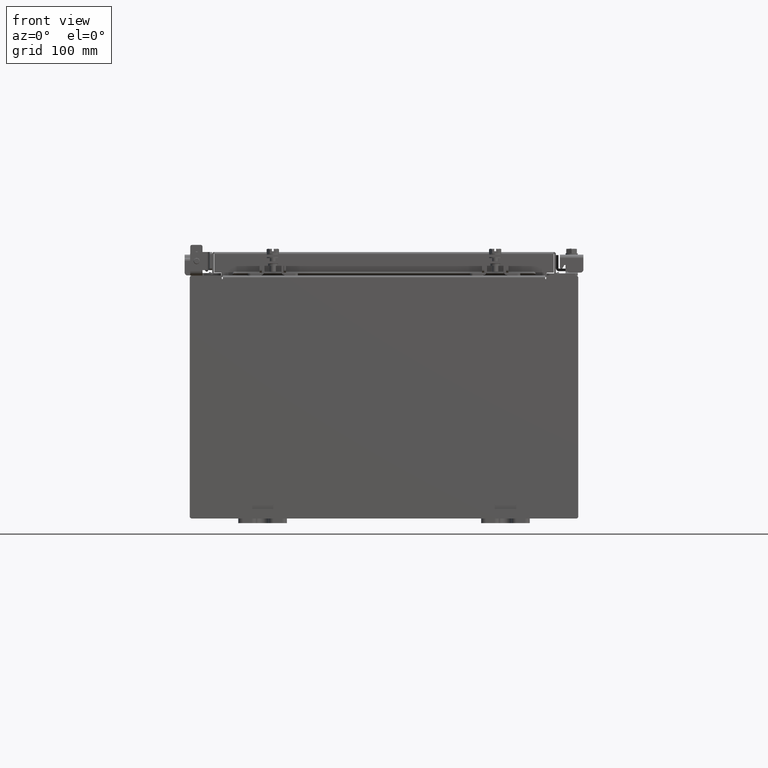
[diagram: clean part render]
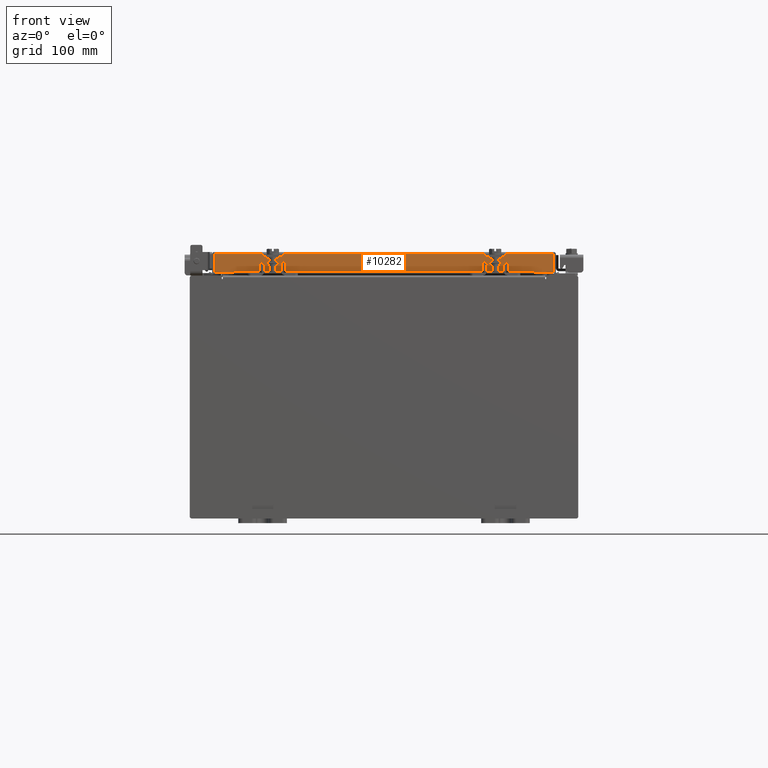
[diagram: same view with one face highlighted and labeled with its STEP entity id]
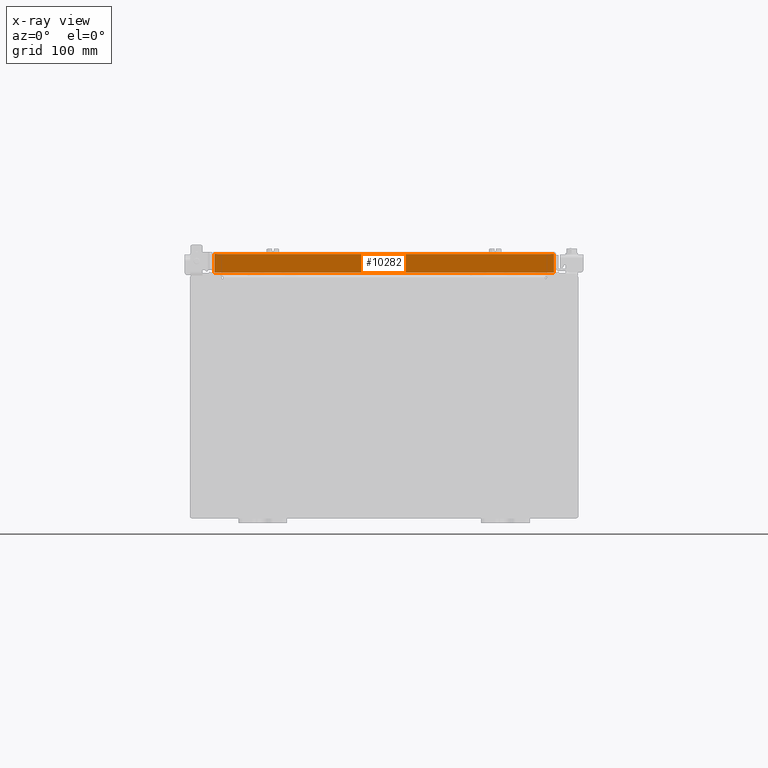
[diagram: x-ray of the same camera — body ghosted, the highlighted face saturated]
A machine part, front view. The second image highlights one B-rep face of the part: STEP entity #10282.
The next image is the same camera in x-ray: the body ghosted, the highlighted face saturated — about 0% of this face is hidden behind the body in this view.
In plain terms, the highlighted planar face has unit normal (-0, 1, -0).
Its self-contained STEP definition (entity closure, byte-faithful):
#180 = EDGE_CURVE ( 'NONE', #18688, #7448, #8850, .T. ) ;
#432 = DIRECTION ( 'NONE',  ( -1.000000000000000000, 0.0000000000000000000, 0.0000000000000000000 ) ) ;
#2750 = VECTOR ( 'NONE', #9981, 39.37007874015748100 ) ;
#3635 = PLANE ( 'NONE',  #17361 ) ;
#4314 = CARTESIAN_POINT ( 'NONE',  ( 7.077999999999995000, -9.094000000000004700, -0.8499999999999999800 ) ) ;
#4582 = VECTOR ( 'NONE', #432, 39.37007874015748100 ) ;
#4780 = VECTOR ( 'NONE', #19242, 39.37007874015748100 ) ;
#5139 = VERTEX_POINT ( 'NONE', #21142 ) ;
#5454 = DIRECTION ( 'NONE',  ( -3.535949605205718300E-031, 1.000000000000000000, -2.818880942772360100E-015 ) ) ;
#5787 = ORIENTED_EDGE ( 'NONE', *, *, #20840, .F. ) ;
#6684 = CARTESIAN_POINT ( 'NONE',  ( -6.989157864376270600, -9.094000000000004700, -0.8499999999999977600 ) ) ;
#7003 = VERTEX_POINT ( 'NONE', #10686 ) ;
#7024 = CARTESIAN_POINT ( 'NONE',  ( 6.239157864376263500, -9.094000000000001200, -0.8499999999999999800 ) ) ;
#7448 = VERTEX_POINT ( 'NONE', #6684 ) ;
#7573 = EDGE_CURVE ( 'NONE', #7003, #7448, #14005, .T. ) ;
#7739 = VECTOR ( 'NONE', #19957, 39.37007874015748100 ) ;
#7935 = DIRECTION ( 'NONE',  ( 1.000000000000000000, 3.535949605205719200E-031, -9.638176865770768000E-046 ) ) ;
#8489 = EDGE_CURVE ( 'NONE', #5139, #10230, #12376, .T. ) ;
#8850 = LINE ( 'NONE', #14056, #18112 ) ;
#8872 = CARTESIAN_POINT ( 'NONE',  ( 0.0000000000000000000, -9.094000000000003000, 2.622574073917692700E-014 ) ) ;
#9185 = LINE ( 'NONE', #19520, #4582 ) ;
#9981 = DIRECTION ( 'NONE',  ( -0.0000000000000000000, -2.818880942772360100E-015, -1.000000000000000000 ) ) ;
#10080 = LINE ( 'NONE', #11428, #14174 ) ;
#10230 = VERTEX_POINT ( 'NONE', #7024 ) ;
#10282 = ADVANCED_FACE ( 'NONE', ( #14752 ), #3635, .F. ) ;
#10358 = ORIENTED_EDGE ( 'NONE', *, *, #13421, .F. ) ;
#10686 = CARTESIAN_POINT ( 'NONE',  ( -6.239157864376270600, -9.094000000000001200, -0.8499999999999999800 ) ) ;
#11428 = CARTESIAN_POINT ( 'NONE',  ( 7.077999999999995900, -9.094000000000003000, -0.08770000000000026400 ) ) ;
#12282 = ORIENTED_EDGE ( 'NONE', *, *, #7573, .F. ) ;
#12376 = LINE ( 'NONE', #4314, #7739 ) ;
#13421 = EDGE_CURVE ( 'NONE', #18688, #18021, #10080, .T. ) ;
#13554 = EDGE_CURVE ( 'NONE', #18021, #5139, #21243, .T. ) ;
#13950 = CARTESIAN_POINT ( 'NONE',  ( 6.989157864376266200, -9.094000000000003000, -0.08770000000000026400 ) ) ;
#14001 = ORIENTED_EDGE ( 'NONE', *, *, #8489, .F. ) ;
#14005 = LINE ( 'NONE', #17484, #4780 ) ;
#14056 = CARTESIAN_POINT ( 'NONE',  ( -6.989157864376271500, -9.094000000000003000, 2.622574073917692700E-014 ) ) ;
#14174 = VECTOR ( 'NONE', #7935, 39.37007874015748100 ) ;
#14706 = EDGE_LOOP ( 'NONE', ( #10358, #16984, #12282, #5787, #14001, #16742 ) ) ;
#14752 = FACE_OUTER_BOUND ( 'NONE', #14706, .T. ) ;
#15240 = CARTESIAN_POINT ( 'NONE',  ( 6.989157864376266200, -9.094000000000003000, -0.07470000000000015500 ) ) ;
#16742 = ORIENTED_EDGE ( 'NONE', *, *, #13554, .F. ) ;
#16984 = ORIENTED_EDGE ( 'NONE', *, *, #180, .T. ) ;
#17045 = DIRECTION ( 'NONE',  ( 0.0000000000000000000, -2.818880942772360100E-015, -1.000000000000000000 ) ) ;
#17352 = CARTESIAN_POINT ( 'NONE',  ( -6.989157864376271500, -9.094000000000003000, -0.08770000000000026400 ) ) ;
#17361 = AXIS2_PLACEMENT_3D ( 'NONE', #8872, #5454, #17615 ) ;
#17484 = CARTESIAN_POINT ( 'NONE',  ( 7.077999999999995000, -9.094000000000004700, -0.8499999999999999800 ) ) ;
#17615 = DIRECTION ( 'NONE',  ( 0.0000000000000000000, 2.818880942772360100E-015, 1.000000000000000000 ) ) ;
#18021 = VERTEX_POINT ( 'NONE', #13950 ) ;
#18112 = VECTOR ( 'NONE', #17045, 39.37007874015748100 ) ;
#18688 = VERTEX_POINT ( 'NONE', #17352 ) ;
#19242 = DIRECTION ( 'NONE',  ( -1.000000000000000000, -0.0000000000000000000, 1.254380613084043100E-016 ) ) ;
#19520 = CARTESIAN_POINT ( 'NONE',  ( 6.239157864376263500, -9.094000000000001200, -0.8499999999999999800 ) ) ;
#19957 = DIRECTION ( 'NONE',  ( -1.000000000000000000, -0.0000000000000000000, 1.254380613084043100E-016 ) ) ;
#20840 = EDGE_CURVE ( 'NONE', #10230, #7003, #9185, .T. ) ;
#21142 = CARTESIAN_POINT ( 'NONE',  ( 6.989157864376266200, -9.094000000000004700, -0.8499999999999999800 ) ) ;
#21243 = LINE ( 'NONE', #15240, #2750 ) ;